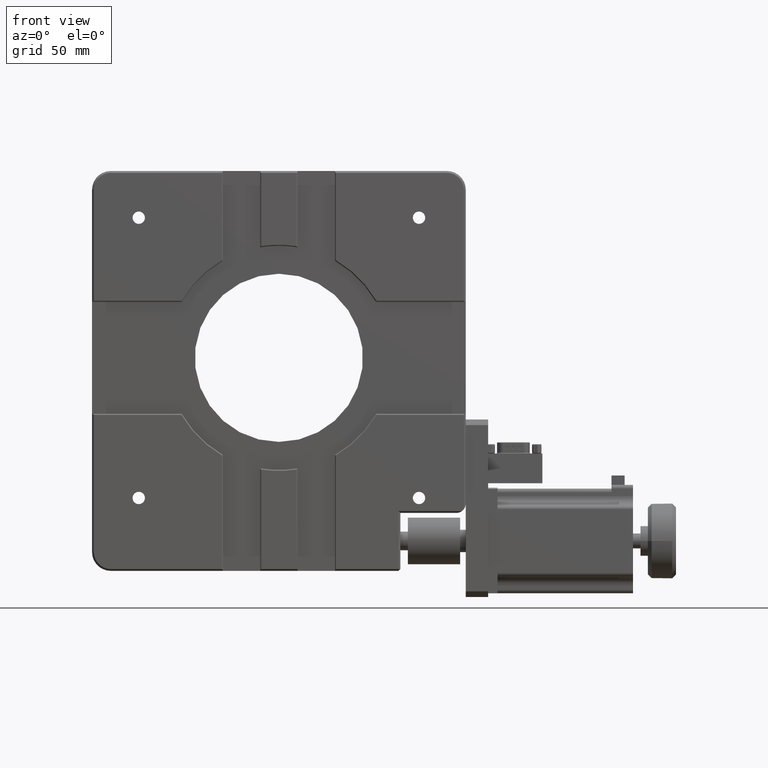
[diagram: clean part render]
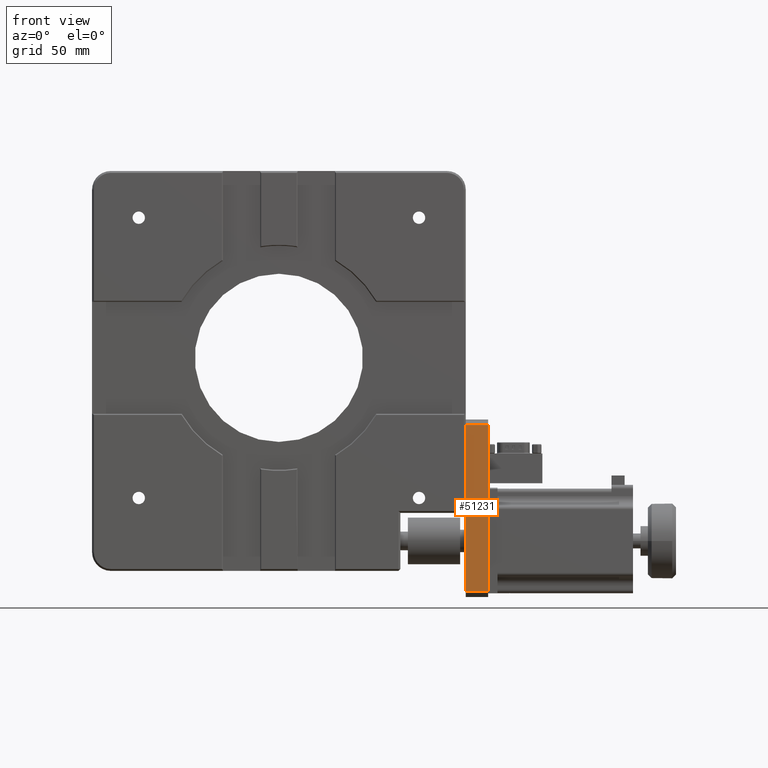
[diagram: same view with one face highlighted and labeled with its STEP entity id]
A machine part, front view. The second image highlights one B-rep face of the part: STEP entity #51231.
In plain terms, the highlighted planar face has unit normal (-0, 1, -0).
Its self-contained STEP definition (entity closure, byte-faithful):
#2785 = VERTEX_POINT ( 'NONE', #8689 ) ;
#7262 = FACE_OUTER_BOUND ( 'NONE', #26459, .T. ) ;
#8689 = CARTESIAN_POINT ( 'NONE',  ( 212.0000000000000900, 0.4999999999999391000, -224.9999999999999700 ) ) ;
#9603 = DIRECTION ( 'NONE',  ( -1.000000000000000000, -2.129656783217882100E-016, -1.043542186005211500E-016 ) ) ;
#9651 = VERTEX_POINT ( 'NONE', #29060 ) ;
#10194 = DIRECTION ( 'NONE',  ( -2.340531700754225500E-016, 2.048408217643522400E-016, 1.000000000000000000 ) ) ;
#10577 = ORIENTED_EDGE ( 'NONE', *, *, #34637, .F. ) ;
#14179 = VERTEX_POINT ( 'NONE', #47734 ) ;
#14279 = LINE ( 'NONE', #17158, #51010 ) ;
#15532 = CARTESIAN_POINT ( 'NONE',  ( 212.0000000000000600, 0.4999999999999569800, -136.0000000000000000 ) ) ;
#17158 = CARTESIAN_POINT ( 'NONE',  ( 200.0000000000000600, 0.4999999999999481000, -168.0000000000001100 ) ) ;
#20327 = VECTOR ( 'NONE', #34517, 1000.000000000000000 ) ;
#20379 = DIRECTION ( 'NONE',  ( -8.326672684688670400E-017, 1.000000000000000000, -2.048408217643522700E-016 ) ) ;
#21581 = LINE ( 'NONE', #50256, #20327 ) ;
#22764 = ORIENTED_EDGE ( 'NONE', *, *, #41649, .T. ) ;
#23572 = DIRECTION ( 'NONE',  ( 2.340531700754225500E-016, -2.048408217643522400E-016, -1.000000000000000000 ) ) ;
#25527 = ORIENTED_EDGE ( 'NONE', *, *, #38522, .F. ) ;
#26302 = EDGE_CURVE ( 'NONE', #9651, #14179, #14279, .T. ) ;
#26459 = EDGE_LOOP ( 'NONE', ( #10577, #22764, #51448, #25527 ) ) ;
#27121 = LINE ( 'NONE', #46866, #29003 ) ;
#27607 = AXIS2_PLACEMENT_3D ( 'NONE', #36427, #20379, #44561 ) ;
#29003 = VECTOR ( 'NONE', #23572, 1000.000000000000000 ) ;
#29060 = CARTESIAN_POINT ( 'NONE',  ( 200.0000000000000600, 0.4999999999999357200, -224.9999999999999700 ) ) ;
#34517 = DIRECTION ( 'NONE',  ( -1.000000000000000000, -8.326672684688675300E-017, -2.340531700754225500E-016 ) ) ;
#34637 = EDGE_CURVE ( 'NONE', #43947, #2785, #27121, .T. ) ;
#36427 = CARTESIAN_POINT ( 'NONE',  ( 212.0000000000000600, 0.4999999999999573100, -136.0000000000000000 ) ) ;
#38522 = EDGE_CURVE ( 'NONE', #2785, #9651, #21581, .T. ) ;
#40731 = PLANE ( 'NONE',  #27607 ) ;
#41649 = EDGE_CURVE ( 'NONE', #43947, #14179, #48633, .T. ) ;
#43947 = VERTEX_POINT ( 'NONE', #15532 ) ;
#44561 = DIRECTION ( 'NONE',  ( 2.340531700754225500E-016, -2.048408217643522400E-016, -1.000000000000000000 ) ) ;
#44923 = CARTESIAN_POINT ( 'NONE',  ( 212.0000000000000600, 0.4999999999999568700, -136.0000000000000000 ) ) ;
#45494 = VECTOR ( 'NONE', #9603, 1000.000000000000000 ) ;
#46866 = CARTESIAN_POINT ( 'NONE',  ( 212.0000000000000600, 0.4999999999999573100, -136.0000000000000000 ) ) ;
#47734 = CARTESIAN_POINT ( 'NONE',  ( 200.0000000000000600, 0.4999999999999556500, -136.0000000000000000 ) ) ;
#48633 = LINE ( 'NONE', #44923, #45494 ) ;
#50256 = CARTESIAN_POINT ( 'NONE',  ( 212.0000000000000900, 0.4999999999999391000, -224.9999999999999700 ) ) ;
#51010 = VECTOR ( 'NONE', #10194, 1000.000000000000000 ) ;
#51231 = ADVANCED_FACE ( 'NONE', ( #7262 ), #40731, .F. ) ;
#51448 = ORIENTED_EDGE ( 'NONE', *, *, #26302, .F. ) ;